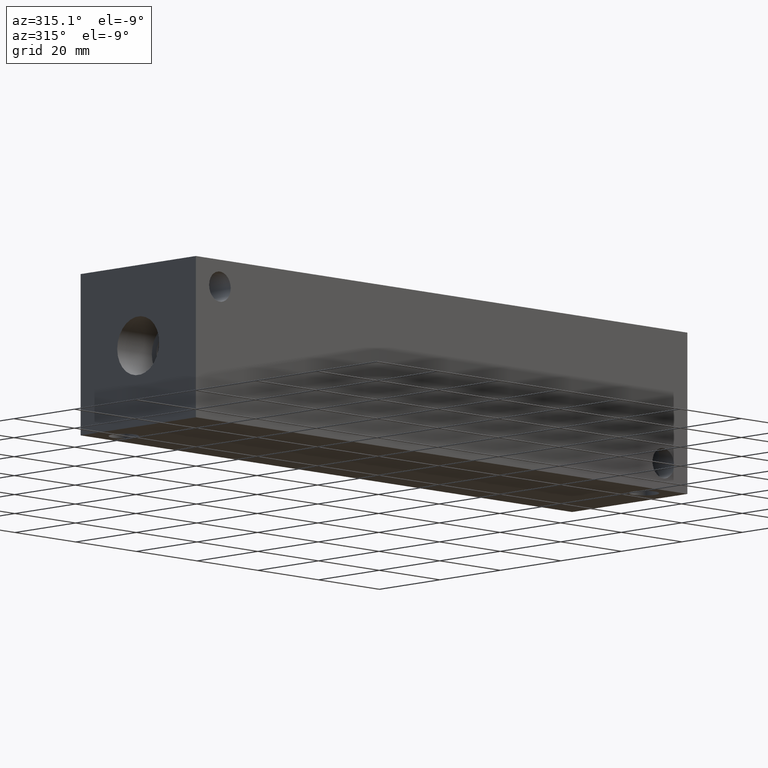
[diagram: clean part render]
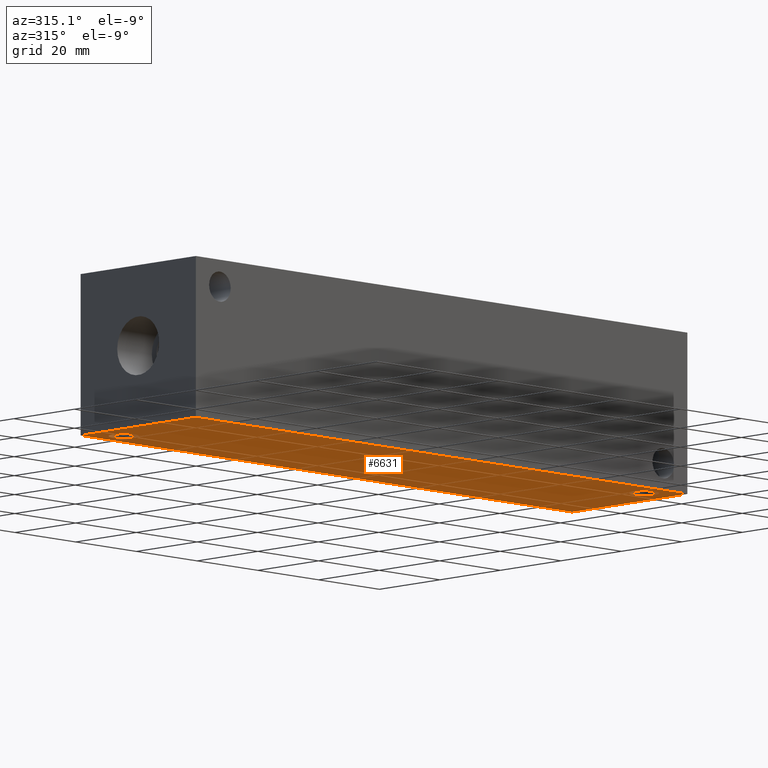
[diagram: same view with one face highlighted and labeled with its STEP entity id]
A machine part, auxiliary view. The second image highlights one B-rep face of the part: STEP entity #6631.
In plain terms, the highlighted planar face has unit normal (0, 0, 1).
Its self-contained STEP definition (entity closure, byte-faithful):
#66=CIRCLE('',#6889,3.5687);
#67=CIRCLE('',#6891,3.5687);
#149=FACE_BOUND('',#1090,.T.);
#150=FACE_BOUND('',#1091,.T.);
#372=PLANE('',#6955);
#707=FACE_OUTER_BOUND('',#1089,.T.);
#1089=EDGE_LOOP('',(#5916,#5917,#5918,#5919));
#1090=EDGE_LOOP('',(#5920));
#1091=EDGE_LOOP('',(#5921));
#1752=LINE('',#11210,#2420);
#1755=LINE('',#11215,#2423);
#1757=LINE('',#11219,#2425);
#1759=LINE('',#11222,#2427);
#2420=VECTOR('',#8228,10.);
#2423=VECTOR('',#8233,10.);
#2425=VECTOR('',#8237,10.);
#2427=VECTOR('',#8241,10.);
#3164=VERTEX_POINT('',#11084);
#3165=VERTEX_POINT('',#11088);
#3206=VERTEX_POINT('',#11208);
#3207=VERTEX_POINT('',#11209);
#3208=VERTEX_POINT('',#11214);
#3209=VERTEX_POINT('',#11218);
#4051=EDGE_CURVE('',#3164,#3164,#66,.T.);
#4053=EDGE_CURVE('',#3165,#3165,#67,.T.);
#4106=EDGE_CURVE('',#3206,#3207,#1752,.T.);
#4109=EDGE_CURVE('',#3208,#3206,#1755,.T.);
#4111=EDGE_CURVE('',#3209,#3208,#1757,.T.);
#4113=EDGE_CURVE('',#3207,#3209,#1759,.T.);
#5916=ORIENTED_EDGE('',*,*,#4113,.F.);
#5917=ORIENTED_EDGE('',*,*,#4106,.F.);
#5918=ORIENTED_EDGE('',*,*,#4109,.F.);
#5919=ORIENTED_EDGE('',*,*,#4111,.F.);
#5920=ORIENTED_EDGE('',*,*,#4051,.T.);
#5921=ORIENTED_EDGE('',*,*,#4053,.T.);
#6631=ADVANCED_FACE('',(#707,#149,#150),#372,.F.);
#6889=AXIS2_PLACEMENT_3D('',#11086,#8085,#8086);
#6891=AXIS2_PLACEMENT_3D('',#11090,#8090,#8091);
#6955=AXIS2_PLACEMENT_3D('',#11224,#8244,#8245);
#8085=DIRECTION('center_axis',(0.,0.,1.));
#8086=DIRECTION('ref_axis',(1.,0.,0.));
#8090=DIRECTION('center_axis',(0.,0.,1.));
#8091=DIRECTION('ref_axis',(1.,0.,0.));
#8228=DIRECTION('',(0.,-1.,0.));
#8233=DIRECTION('',(-1.,0.,0.));
#8237=DIRECTION('',(0.,1.,0.));
#8241=DIRECTION('',(1.,0.,0.));
#8244=DIRECTION('center_axis',(0.,0.,1.));
#8245=DIRECTION('ref_axis',(1.,0.,0.));
#11084=CARTESIAN_POINT('',(150.4061,6.35,0.));
#11086=CARTESIAN_POINT('Origin',(153.9748,6.35,0.));
#11088=CARTESIAN_POINT('',(4.3561,31.75,0.));
#11090=CARTESIAN_POINT('Origin',(7.9248,31.75,0.));
#11208=CARTESIAN_POINT('',(0.,38.1,0.));
#11209=CARTESIAN_POINT('',(0.,0.,0.));
#11210=CARTESIAN_POINT('',(0.,38.1,0.));
#11214=CARTESIAN_POINT('',(161.925,38.1,0.));
#11215=CARTESIAN_POINT('',(161.925,38.1,0.));
#11218=CARTESIAN_POINT('',(161.925,0.,0.));
#11219=CARTESIAN_POINT('',(161.925,0.,0.));
#11222=CARTESIAN_POINT('',(0.,0.,0.));
#11224=CARTESIAN_POINT('Origin',(80.9625,19.05,0.));